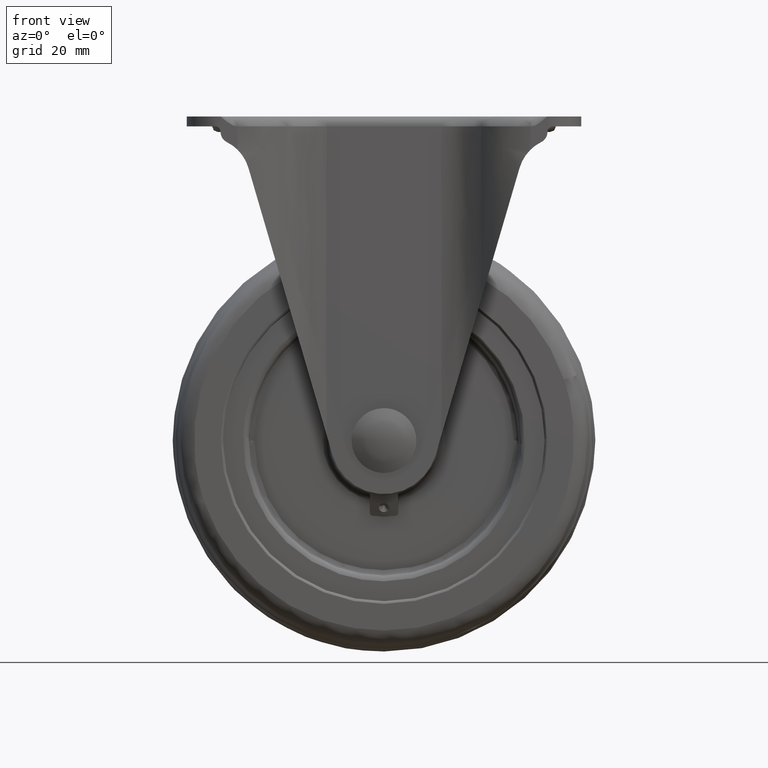
[diagram: clean part render]
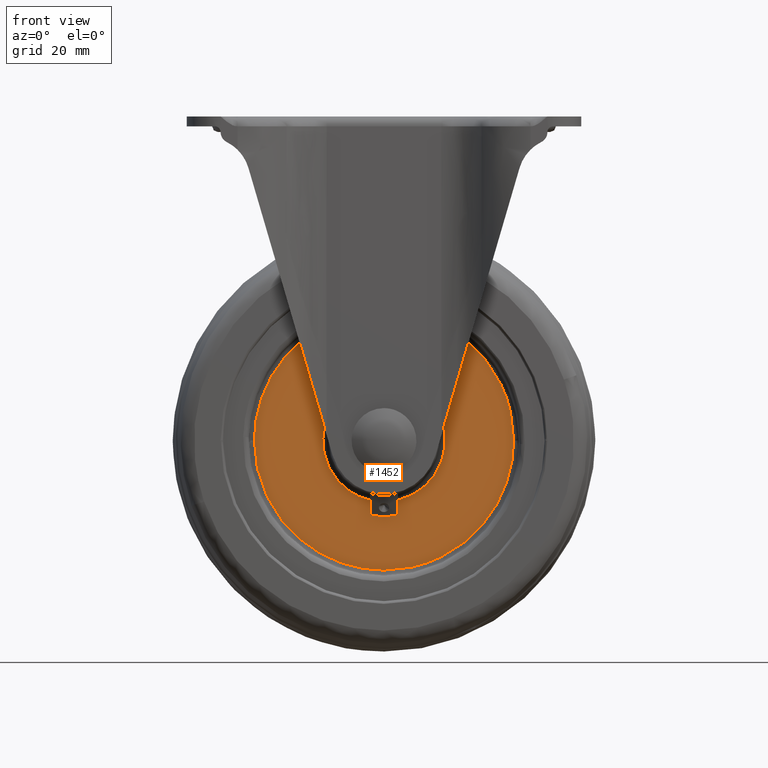
[diagram: same view with one face highlighted and labeled with its STEP entity id]
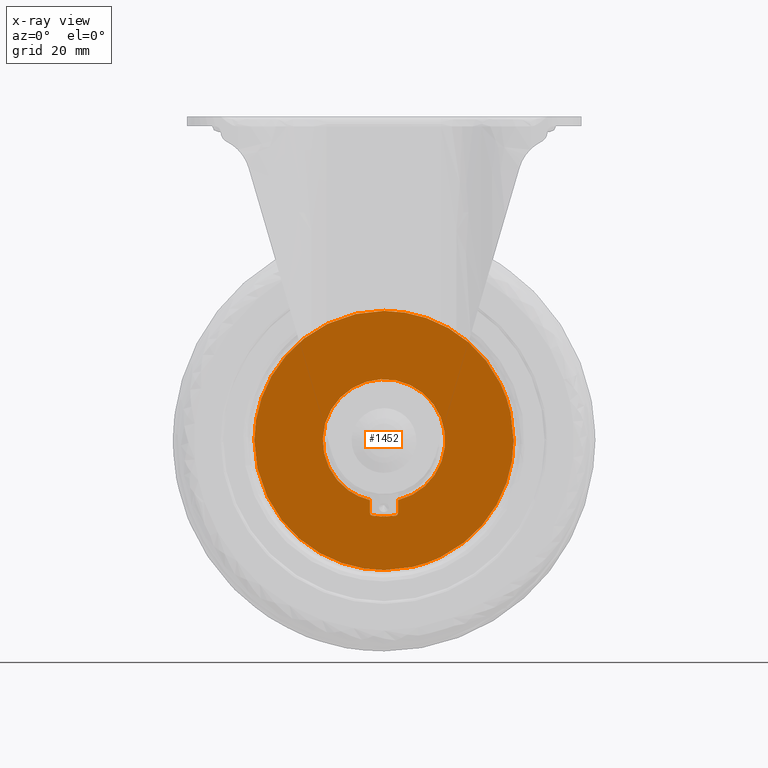
[diagram: x-ray of the same camera — body ghosted, the highlighted face saturated]
A machine part, front view. The second image highlights one B-rep face of the part: STEP entity #1452.
The next image is the same camera in x-ray: the body ghosted, the highlighted face saturated — about 0% of this face is hidden behind the body in this view.
In plain terms, the highlighted face is a freeform B-spline surface patch.
Its self-contained STEP definition (entity closure, byte-faithful):
#744=CARTESIAN_POINT('',(-45.999985005564277,-12.0,-0.000014999999845));
#745=VERTEX_POINT('',#744);
#759=CARTESIAN_POINT('',(0.0,-12.0,45.999970000000353));
#760=VERTEX_POINT('',#759);
#761=CARTESIAN_POINT('',(0.0,-12.0,45.999970000000353));
#762=CARTESIAN_POINT('',(-45.999985002782232,-12.0,45.999970000000360));
#763=CARTESIAN_POINT('',(-45.999985005564277,-12.0,-0.000014999999845));
#771=(BOUNDED_CURVE()B_SPLINE_CURVE(2,(#761,#762,#763),.UNSPECIFIED.,.F.,.U.)B_SPLINE_CURVE_WITH_KNOTS((3,3),(0.500000000000000,0.750000000000000),.UNSPECIFIED.)CURVE()GEOMETRIC_REPRESENTATION_ITEM()RATIONAL_B_SPLINE_CURVE((1.0,0.707106781186547,1.0))REPRESENTATION_ITEM(''));
#772=EDGE_CURVE('',#760,#745,#771,.T.);
#774=CARTESIAN_POINT('',(45.999985005564270,-12.0,-0.000014999999859));
#775=VERTEX_POINT('',#774);
#776=CARTESIAN_POINT('',(45.999985005564270,-12.0,-0.000014999999859));
#777=CARTESIAN_POINT('',(45.999985002782232,-12.0,45.999970000000360));
#778=CARTESIAN_POINT('',(0.0,-12.0,45.999970000000353));
#786=(BOUNDED_CURVE()B_SPLINE_CURVE(2,(#776,#777,#778),.UNSPECIFIED.,.F.,.U.)B_SPLINE_CURVE_WITH_KNOTS((3,3),(0.250000000000000,0.500000000000000),.UNSPECIFIED.)CURVE()GEOMETRIC_REPRESENTATION_ITEM()RATIONAL_B_SPLINE_CURVE((1.0,0.707106781186547,1.0))REPRESENTATION_ITEM(''));
#787=EDGE_CURVE('',#775,#760,#786,.T.);
#837=CARTESIAN_POINT('',(0.0,-12.0,-46.000000000000050));
#838=VERTEX_POINT('',#837);
#839=CARTESIAN_POINT('',(0.0,-12.0,-46.000000000000050));
#840=CARTESIAN_POINT('',(45.999985002782232,-12.0,-46.000000000000057));
#841=CARTESIAN_POINT('',(45.999985005564270,-12.0,-0.000014999999859));
#849=(BOUNDED_CURVE()B_SPLINE_CURVE(2,(#839,#840,#841),.UNSPECIFIED.,.F.,.U.)B_SPLINE_CURVE_WITH_KNOTS((3,3),(0.0,0.250000000000000),.UNSPECIFIED.)CURVE()GEOMETRIC_REPRESENTATION_ITEM()RATIONAL_B_SPLINE_CURVE((1.0,0.707106781186547,1.0))REPRESENTATION_ITEM(''));
#850=EDGE_CURVE('',#838,#775,#849,.T.);
#852=CARTESIAN_POINT('',(-45.999985005564277,-12.0,-0.000014999999845));
#853=CARTESIAN_POINT('',(-45.999985002782232,-12.0,-46.000000000000057));
#854=CARTESIAN_POINT('',(0.0,-12.0,-46.000000000000050));
#862=(BOUNDED_CURVE()B_SPLINE_CURVE(2,(#852,#853,#854),.UNSPECIFIED.,.F.,.U.)B_SPLINE_CURVE_WITH_KNOTS((3,3),(0.750000000000000,1.0),.UNSPECIFIED.)CURVE()GEOMETRIC_REPRESENTATION_ITEM()RATIONAL_B_SPLINE_CURVE((1.0,0.707106781186547,1.0))REPRESENTATION_ITEM(''));
#863=EDGE_CURVE('',#745,#838,#862,.T.);
#1173=CARTESIAN_POINT('',(-4.999999999999890,-12.0,-21.154659248889850));
#1174=VERTEX_POINT('',#1173);
#1204=CARTESIAN_POINT('',(-4.999999999999830,-12.0,-25.690464668387300));
#1205=VERTEX_POINT('',#1204);
#1206=CARTESIAN_POINT('',(-4.999999999999890,-12.0,-21.154659248889850));
#1207=CARTESIAN_POINT('',(-4.999999999999830,-12.0,-25.690464668387300));
#1208=QUASI_UNIFORM_CURVE('',1,(#1206,#1207),.UNSPECIFIED.,.F.,.U.);
#1209=EDGE_CURVE('',#1174,#1205,#1208,.T.);
#1233=CARTESIAN_POINT('',(-4.153853534152336,-12.0,-26.678558664602999));
#1234=VERTEX_POINT('',#1233);
#1242=CARTESIAN_POINT('',(-4.153853534152337,-12.0,-26.678558664603010));
#1243=CARTESIAN_POINT('',(-5.000000283973845,-12.000000000000002,-26.546807321045979));
#1244=CARTESIAN_POINT('',(-4.999999999999830,-12.0,-25.690464668387300));
#1252=(BOUNDED_CURVE()B_SPLINE_CURVE(2,(#1242,#1243,#1244),.UNSPECIFIED.,.F.,.U.)CURVE()GEOMETRIC_REPRESENTATION_ITEM()QUASI_UNIFORM_CURVE()RATIONAL_B_SPLINE_CURVE((1.0,0.759556846617859,1.0))REPRESENTATION_ITEM(''));
#1253=EDGE_CURVE('',#1234,#1205,#1252,.T.);
#1272=CARTESIAN_POINT('',(4.153846486484350,-12.0,-26.678559919282051));
#1273=VERTEX_POINT('',#1272);
#1281=CARTESIAN_POINT('',(4.153846486484350,-12.0,-26.678559919282030));
#1282=CARTESIAN_POINT('',(-0.000003621510716,-11.999999999999998,-27.325313556985208));
#1283=CARTESIAN_POINT('',(-4.153853558073005,-12.0,-26.678558818236120));
#1291=(BOUNDED_CURVE()B_SPLINE_CURVE(2,(#1281,#1282,#1283),.UNSPECIFIED.,.F.,.U.)CURVE()GEOMETRIC_REPRESENTATION_ITEM()QUASI_UNIFORM_CURVE()RATIONAL_B_SPLINE_CURVE((1.0,0.988094791435530,1.0))REPRESENTATION_ITEM(''));
#1292=EDGE_CURVE('',#1273,#1234,#1291,.T.);
#1311=CARTESIAN_POINT('',(5.0,-12.0,-25.690464999999900));
#1312=VERTEX_POINT('',#1311);
#1320=CARTESIAN_POINT('',(5.0,-12.0,-25.690464999999900));
#1321=CARTESIAN_POINT('',(5.0,-12.000000000000002,-26.546813567795152));
#1322=CARTESIAN_POINT('',(4.153846462567783,-12.0,-26.678559765675431));
#1330=(BOUNDED_CURVE()B_SPLINE_CURVE(2,(#1320,#1321,#1322),.UNSPECIFIED.,.F.,.U.)CURVE()GEOMETRIC_REPRESENTATION_ITEM()QUASI_UNIFORM_CURVE()RATIONAL_B_SPLINE_CURVE((1.0,0.759554626925471,1.0))REPRESENTATION_ITEM(''));
#1331=EDGE_CURVE('',#1312,#1273,#1330,.T.);
#1343=CARTESIAN_POINT('',(5.000000000000110,-12.0,-21.154659248889800));
#1344=VERTEX_POINT('',#1343);
#1345=CARTESIAN_POINT('',(5.0,-12.0,-25.690464999999900));
#1346=CARTESIAN_POINT('',(5.000000000000110,-12.0,-21.154659248889800));
#1347=QUASI_UNIFORM_CURVE('',1,(#1345,#1346),.UNSPECIFIED.,.F.,.U.);
#1348=EDGE_CURVE('',#1312,#1344,#1347,.T.);
#1392=CARTESIAN_POINT('',(-50.595383329306351,-12.0,50.595368323186577));
#1393=CARTESIAN_POINT('',(-50.595383329306351,-12.0,-50.595400790817763));
#1394=CARTESIAN_POINT('',(50.595385796937833,-12.0,50.595368323186577));
#1395=CARTESIAN_POINT('',(50.595385796937833,-12.0,-50.595400790817763));
#1396=B_SPLINE_SURFACE_WITH_KNOTS('',1,1,((#1392,#1394),(#1393,#1395)),.UNSPECIFIED.,.F.,.F.,.U.,(2,2),(2,2),(0.0,101.190769114004300),(0.0,101.190769126244210),.UNSPECIFIED.);
#1397=ORIENTED_EDGE('',*,*,#850,.T.);
#1398=ORIENTED_EDGE('',*,*,#787,.T.);
#1399=ORIENTED_EDGE('',*,*,#772,.T.);
#1400=ORIENTED_EDGE('',*,*,#863,.T.);
#1401=EDGE_LOOP('',(#1397,#1398,#1399,#1400));
#1402=FACE_OUTER_BOUND('',#1401,.T.);
#1403=CARTESIAN_POINT('',(5.000000000000110,-12.0,-21.154659248889800));
#1404=CARTESIAN_POINT('',(6.202128259935286,-12.000000000000011,-20.870639703464541));
#1405=CARTESIAN_POINT('',(8.243643896690255,-11.999999999999989,-20.199950340683770));
#1406=CARTESIAN_POINT('',(11.046062747640709,-12.000000000000020,-18.793733438087781));
#1407=CARTESIAN_POINT('',(13.369001176439410,-12.0,-17.218866832665991));
#1408=CARTESIAN_POINT('',(15.774557639804501,-12.000000000000050,-15.081390716011100));
#1409=CARTESIAN_POINT('',(17.829567298792991,-11.999999999999980,-12.595975583952720));
#1410=CARTESIAN_POINT('',(19.754893767677508,-12.000000000000011,-9.323300281303329));
#1411=CARTESIAN_POINT('',(21.101103303279810,-12.0,-5.761179024345980));
#1412=CARTESIAN_POINT('',(21.709500152812382,-12.0,-2.173991382637220));
#1413=CARTESIAN_POINT('',(21.780025878185910,-12.000000000000020,1.289575180557178));
#1414=CARTESIAN_POINT('',(21.380701898363050,-12.000000000000020,4.406306407383077));
#1415=CARTESIAN_POINT('',(20.331003037296512,-11.999999999999750,7.969317279868805));
#1416=CARTESIAN_POINT('',(18.959746288547930,-12.000000000000520,10.798433963485490));
#1417=CARTESIAN_POINT('',(17.053355493823329,-11.999999999999300,13.590496449778010));
#1418=CARTESIAN_POINT('',(14.946211258478350,-12.000000000000041,15.919470603583340));
#1419=CARTESIAN_POINT('',(12.292433585789491,-12.000000000000099,18.024215203502070));
#1420=CARTESIAN_POINT('',(9.646270905882020,-11.999999999999980,19.549104107529139));
#1421=CARTESIAN_POINT('',(6.596290638612380,-11.999999999999959,20.810433093302830));
#1422=CARTESIAN_POINT('',(3.295834445046908,-12.000000000000130,21.593607645010358));
#1423=CARTESIAN_POINT('',(-0.660033154820318,-11.999999999999909,21.841203596252569));
#1424=CARTESIAN_POINT('',(-4.525665117735735,-12.000000000000011,21.400087654374069));
#1425=CARTESIAN_POINT('',(-8.072879638834246,-12.0,20.275867722181971));
#1426=CARTESIAN_POINT('',(-11.251683281092880,-11.999999999999909,18.699826212798111));
#1427=CARTESIAN_POINT('',(-14.158574349977391,-12.000000000000760,16.652100403161420));
#1428=CARTESIAN_POINT('',(-16.762867010306291,-11.999999999998440,13.994161304027980));
#1429=CARTESIAN_POINT('',(-19.082462848285360,-12.000000000000540,10.678745723436011));
#1430=CARTESIAN_POINT('',(-20.647172627182108,-11.999999999997520,7.202060691349461));
#1431=CARTESIAN_POINT('',(-21.609901033229939,-11.999999999999670,3.187061675153086));
#1432=CARTESIAN_POINT('',(-21.824588456451071,-12.000000000000471,-0.115290085831291));
#1433=CARTESIAN_POINT('',(-21.503673306360039,-11.999999999999840,-3.730372034034722));
#1434=CARTESIAN_POINT('',(-20.651385908871180,-12.000000000000030,-7.184399560511386));
#1435=CARTESIAN_POINT('',(-19.032938597706540,-12.000000000000011,-10.717941976672900));
#1436=CARTESIAN_POINT('',(-17.120480330139159,-11.999999999999989,-13.513448759994249));
#1437=CARTESIAN_POINT('',(-15.001552941410701,-12.0,-15.824560445413811));
#1438=CARTESIAN_POINT('',(-12.268595027533090,-12.0,-18.091564321388589));
#1439=CARTESIAN_POINT('',(-8.871937072027262,-12.000000000000011,-19.993781205761628));
#1440=CARTESIAN_POINT('',(-6.202115562159284,-12.0,-20.870599354322479));
#1441=CARTESIAN_POINT('',(-4.999999999999890,-12.0,-21.154659248889850));
#1442=B_SPLINE_CURVE_WITH_KNOTS('',3,(#1403,#1404,#1405,#1406,#1407,#1408,#1409,#1410,#1411,#1412,#1413,#1414,#1415,#1416,#1417,#1418,#1419,#1420,#1421,#1422,#1423,#1424,#1425,#1426,#1427,#1428,#1429,#1430,#1431,#1432,#1433,#1434,#1435,#1436,#1437,#1438,#1439,#1440,#1441),.UNSPECIFIED.,.F.,.U.,(4,1,1,1,1,1,1,1,1,1,1,1,1,1,1,1,1,1,1,1,1,1,1,1,1,1,1,1,1,1,1,1,1,1,1,1,4),(0.000000082705384,3.705670662891961,6.423287683237362,9.388012409576760,12.105564013794609,16.058445084575080,19.023112881751789,23.470107341299979,27.422982200297611,29.893424321325099,33.846158557584452,36.810881007077072,41.010725522071553,43.234227148932902,46.940050587208191,50.398819359844168,53.363492791558997,56.081093752196651,60.280997507598492,63.492598129114988,67.939457620537496,71.892378373479204,74.609940526687652,78.562822719602991,82.515678306595902,85.727414346641581,90.668507874960966,93.880117975843916,98.079919955627176,100.550462791521100,104.750379284517710,108.703270688768600,112.162030058960100,114.879603843628200,118.091351687773700,122.785388154376700,126.491083133801400),.UNSPECIFIED.);
#1443=EDGE_CURVE('',#1344,#1174,#1442,.T.);
#1444=ORIENTED_EDGE('',*,*,#1443,.F.);
#1445=ORIENTED_EDGE('',*,*,#1348,.F.);
#1446=ORIENTED_EDGE('',*,*,#1331,.T.);
#1447=ORIENTED_EDGE('',*,*,#1292,.T.);
#1448=ORIENTED_EDGE('',*,*,#1253,.T.);
#1449=ORIENTED_EDGE('',*,*,#1209,.F.);
#1450=EDGE_LOOP('',(#1444,#1445,#1446,#1447,#1448,#1449));
#1451=FACE_BOUND('',#1450,.T.);
#1452=ADVANCED_FACE('',(#1402,#1451),#1396,.T.);